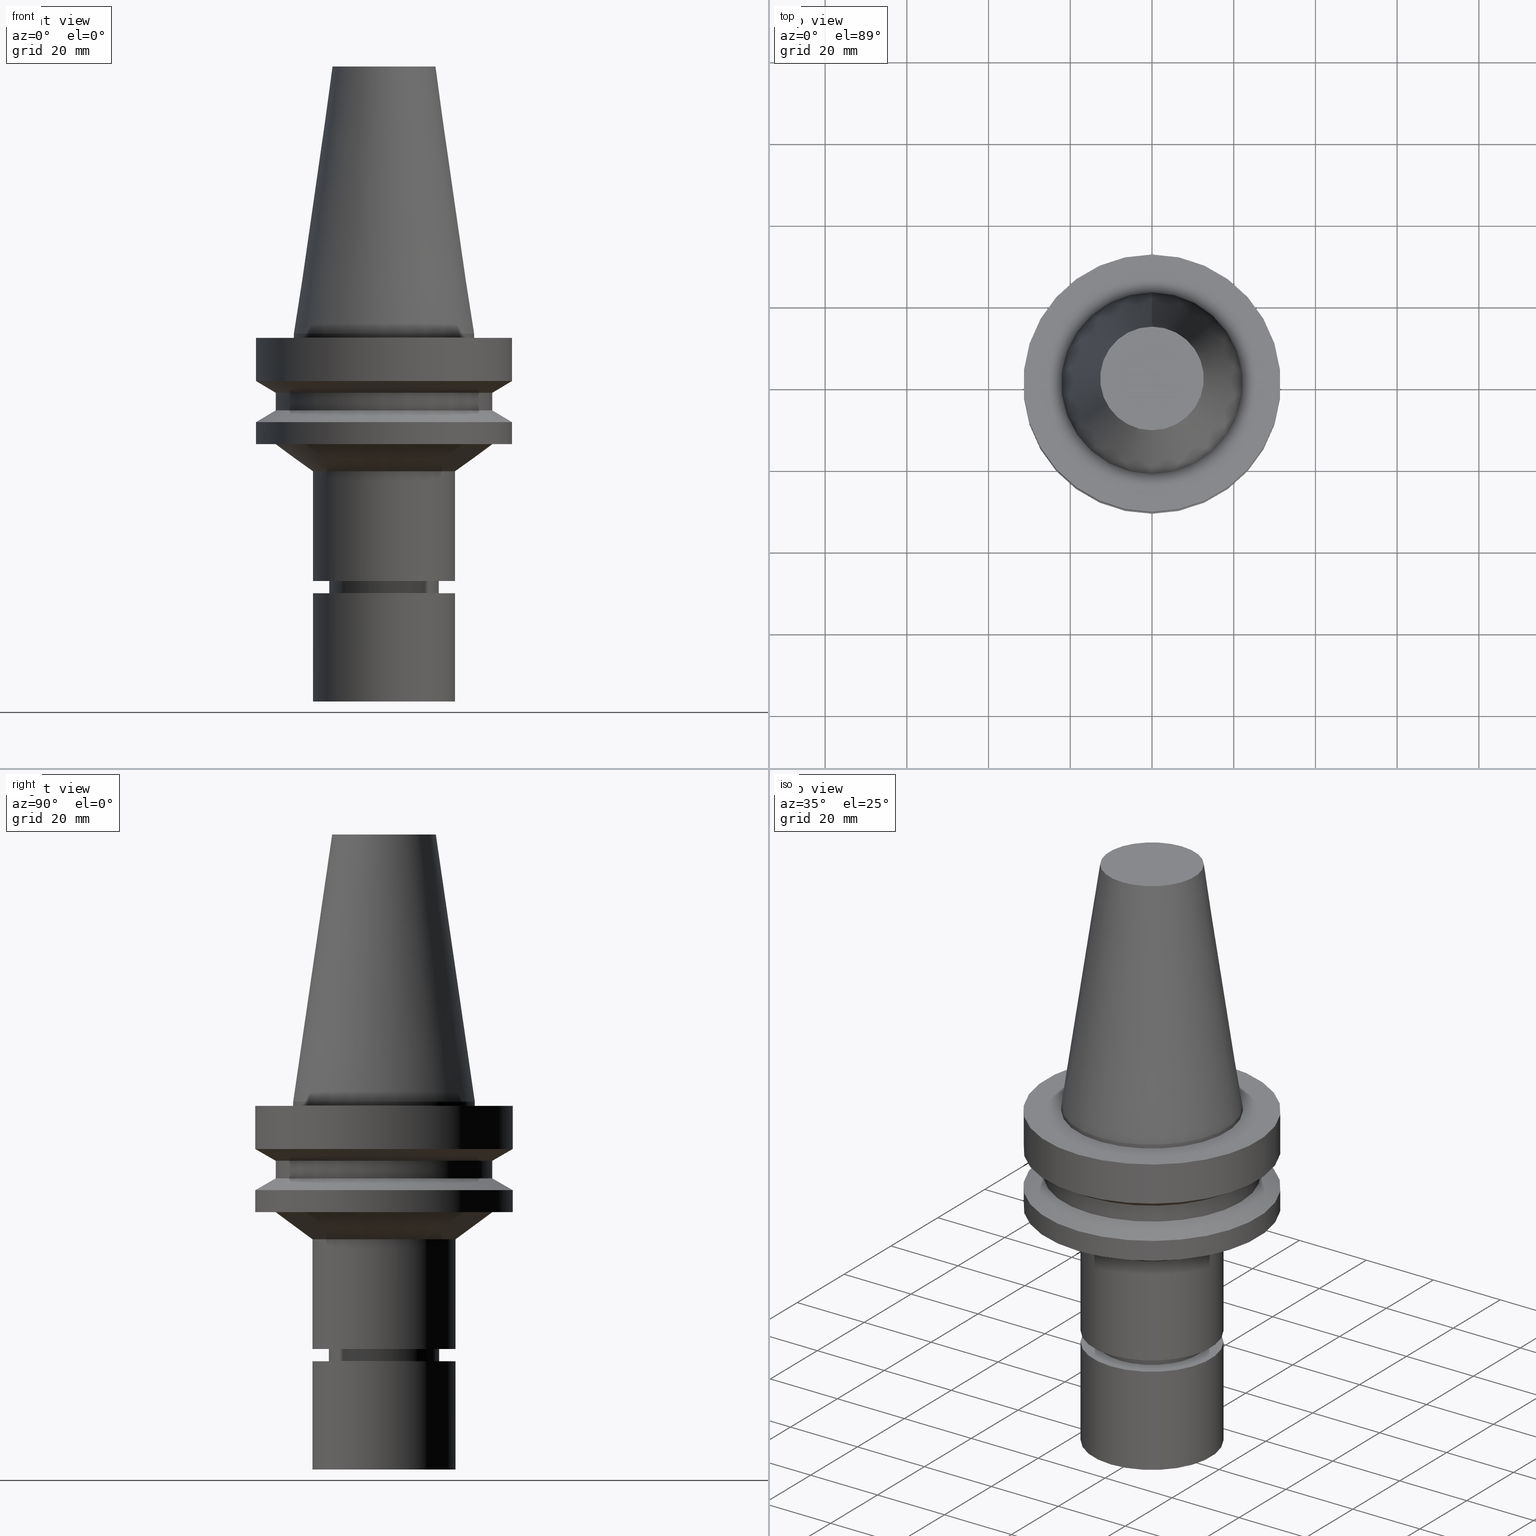
[diagram: canonical four-view strip — front | top / right | iso, engineering-drawing reading convention]
A machine part, canonical four-view strip (front | top / right | iso — engineering-drawing reading convention). The complete STEP part file that produces these views, byte-faithful:
ISO-10303-21;
HEADER;
FILE_DESCRIPTION((''),'1');
FILE_NAME('V:/90_\X2\53D65F9730C730FC30BF\X0\/00_\X2\6DE18DEF30C730FC30BF\X0\/ALL/BBT-BKUS\X2\FF76FF80FF9BFF78FF9E752852A05DE556F3\X0\201801/BBT40-MEGAER/BBT40-MEGAER20-90NL.stp','2018-02-07T01:57:15',(''),(''),'Spatial Interop R21 SP3','Kubotek KeyCreator 2011 V10.0.2 (22737)',' ');
FILE_SCHEMA(('automotive_design'));
ENDSEC;
DATA;
#1=MECHANICAL_DESIGN_GEOMETRIC_PRESENTATION_REPRESENTATION(' ',(#14,#15,#16,#17,#18,#19,#20,#21,#22,#23,#24,#25,#26,#27,#28,#29,#30,#31,#32,#33,#34,#35,#36,#37,#38,#39,#40,#41,#42,#43,#44,#45,#46,#47,#48,#49,#50,#51,#52,#53,#54,#55),#10);
#2=PRODUCT_DEFINITION_CONTEXT('',#56,'design');
#3=APPLICATION_PROTOCOL_DEFINITION('INTERNATIONAL STANDARD','automotive_design',1994,#56);
#4=PRODUCT_CATEGORY_RELATIONSHIP('NONE','NONE',#57,#58);
#5=SHAPE_DEFINITION_REPRESENTATION(#59,#60);
#6=PRODUCT_DEFINITION_CONTEXT('',#61,'design');
#7=APPLICATION_PROTOCOL_DEFINITION('INTERNATIONAL STANDARD','automotive_design',1994,#61);
#8=PRODUCT_CATEGORY_RELATIONSHIP('NONE','NONE',#62,#63);
#9=SHAPE_DEFINITION_REPRESENTATION(#64,#65);
#10= (GEOMETRIC_REPRESENTATION_CONTEXT(3)GLOBAL_UNCERTAINTY_ASSIGNED_CONTEXT((#68))GLOBAL_UNIT_ASSIGNED_CONTEXT((#70,#71,#72))REPRESENTATION_CONTEXT('NONE','WORKSPACE'));
#14=STYLED_ITEM('',(#74,#75),#76);
#15=STYLED_ITEM('',(#77),#78);
#16=STYLED_ITEM('',(#79),#80);
#17=STYLED_ITEM('',(#81,#82),#83);
#18=STYLED_ITEM('',(#84),#85);
#19=STYLED_ITEM('',(#86,#87),#88);
#20=STYLED_ITEM('',(#89,#90),#91);
#21=STYLED_ITEM('',(#92,#93),#94);
#22=STYLED_ITEM('',(#95,#96),#97);
#23=STYLED_ITEM('',(#98,#99),#100);
#24=STYLED_ITEM('',(#101),#102);
#25=STYLED_ITEM('',(#103),#104);
#26=STYLED_ITEM('',(#105),#106);
#27=STYLED_ITEM('',(#107),#108);
#28=STYLED_ITEM('',(#109),#110);
#29=STYLED_ITEM('',(#111),#112);
#30=STYLED_ITEM('',(#113,#114),#115);
#31=STYLED_ITEM('',(#116,#117),#118);
#32=STYLED_ITEM('',(#119),#120);
#33=STYLED_ITEM('',(#121,#122),#123);
#34=STYLED_ITEM('',(#124),#125);
#35=STYLED_ITEM('',(#126,#127),#128);
#36=STYLED_ITEM('',(#129),#130);
#37=STYLED_ITEM('',(#131,#132),#133);
#38=STYLED_ITEM('',(#134,#135),#136);
#39=STYLED_ITEM('',(#137,#138),#139);
#40=STYLED_ITEM('',(#140,#141),#142);
#41=STYLED_ITEM('',(#143,#144),#145);
#42=STYLED_ITEM('',(#146,#147),#148);
#43=STYLED_ITEM('',(#149,#150),#151);
#44=STYLED_ITEM('',(#152,#153),#154);
#45=STYLED_ITEM('',(#155),#156);
#46=STYLED_ITEM('',(#157,#158),#159);
#47=STYLED_ITEM('',(#160),#161);
#48=STYLED_ITEM('',(#162),#163);
#49=STYLED_ITEM('',(#164,#165),#166);
#50=STYLED_ITEM('',(#167),#168);
#51=STYLED_ITEM('',(#169),#170);
#52=STYLED_ITEM('',(#171),#172);
#53=STYLED_ITEM('',(#173),#174);
#54=STYLED_ITEM('',(#175,#176),#177);
#55=STYLED_ITEM('',(#178,#179),#180);
#56=APPLICATION_CONTEXT(' ');
#57=PRODUCT_CATEGORY('part','NONE');
#58=PRODUCT_RELATED_PRODUCT_CATEGORY('detail',' ',(#181));
#59=PRODUCT_DEFINITION_SHAPE('NONE','NONE',#182);
#60=ADVANCED_BREP_SHAPE_REPRESENTATION('Unnamed[1]',(#139,#183),#10);
#61=APPLICATION_CONTEXT(' ');
#62=PRODUCT_CATEGORY('part','NONE');
#63=PRODUCT_RELATED_PRODUCT_CATEGORY('detail',' ',(#184));
#64=PRODUCT_DEFINITION_SHAPE('NONE','NONE',#185);
#65=ADVANCED_BREP_SHAPE_REPRESENTATION('Unnamed[1]',(#76,#186),#10);
#68=UNCERTAINTY_MEASURE_WITH_UNIT(LENGTH_MEASURE(1.0E-006),#70,'','');
#70= (CONVERSION_BASED_UNIT('MILLIMETRE',#189)LENGTH_UNIT()NAMED_UNIT(#192));
#71= (NAMED_UNIT(#194)PLANE_ANGLE_UNIT()SI_UNIT($,.RADIAN.));
#72= (NAMED_UNIT(#194)SOLID_ANGLE_UNIT()SI_UNIT($,.STERADIAN.));
#74=PRESENTATION_STYLE_ASSIGNMENT((#200));
#75=PRESENTATION_STYLE_ASSIGNMENT((#201));
#76=MANIFOLD_SOLID_BREP('Unnamed[1]',#202);
#77=PRESENTATION_STYLE_ASSIGNMENT((#203));
#78=EDGE_CURVE('Unnamed[1]',#204,#204,#205,.T.);
#79=PRESENTATION_STYLE_ASSIGNMENT((#206));
#80=EDGE_CURVE('Unnamed[1]',#207,#207,#208,.T.);
#81=PRESENTATION_STYLE_ASSIGNMENT((#209));
#82=PRESENTATION_STYLE_ASSIGNMENT((#210));
#83=ADVANCED_FACE('Unnamed[1]',(#211,#212),#213,.T.);
#84=PRESENTATION_STYLE_ASSIGNMENT((#214));
#85=EDGE_CURVE('Unnamed[1]',#215,#215,#216,.T.);
#86=PRESENTATION_STYLE_ASSIGNMENT((#217));
#87=PRESENTATION_STYLE_ASSIGNMENT((#218));
#88=ADVANCED_FACE('Unnamed[1]',(#219,#220),#221,.T.);
#89=PRESENTATION_STYLE_ASSIGNMENT((#222));
#90=PRESENTATION_STYLE_ASSIGNMENT((#223));
#91=ADVANCED_FACE('Unnamed[1]',(#224),#225,.T.);
#92=PRESENTATION_STYLE_ASSIGNMENT((#226));
#93=PRESENTATION_STYLE_ASSIGNMENT((#227));
#94=ADVANCED_FACE('Unnamed[1]',(#228,#229),#230,.T.);
#95=PRESENTATION_STYLE_ASSIGNMENT((#231));
#96=PRESENTATION_STYLE_ASSIGNMENT((#232));
#97=ADVANCED_FACE('Unnamed[1]',(#233),#234,.T.);
#98=PRESENTATION_STYLE_ASSIGNMENT((#235));
#99=PRESENTATION_STYLE_ASSIGNMENT((#236));
#100=ADVANCED_FACE('Unnamed[1]',(#237),#238,.T.);
#101=PRESENTATION_STYLE_ASSIGNMENT((#239));
#102=EDGE_CURVE('Unnamed[1]',#240,#240,#241,.T.);
#103=PRESENTATION_STYLE_ASSIGNMENT((#242));
#104=EDGE_CURVE('Unnamed[1]',#243,#243,#244,.T.);
#105=PRESENTATION_STYLE_ASSIGNMENT((#245));
#106=EDGE_CURVE('Unnamed[1]',#246,#246,#247,.T.);
#107=PRESENTATION_STYLE_ASSIGNMENT((#248));
#108=EDGE_CURVE('Unnamed[1]',#249,#249,#250,.T.);
#109=PRESENTATION_STYLE_ASSIGNMENT((#251));
#110=EDGE_CURVE('Unnamed[1]',#252,#252,#253,.T.);
#111=PRESENTATION_STYLE_ASSIGNMENT((#254));
#112=EDGE_CURVE('Unnamed[1]',#255,#255,#256,.T.);
#113=PRESENTATION_STYLE_ASSIGNMENT((#257));
#114=PRESENTATION_STYLE_ASSIGNMENT((#258));
#115=ADVANCED_FACE('Unnamed[1]',(#259,#260),#261,.T.);
#116=PRESENTATION_STYLE_ASSIGNMENT((#262));
#117=PRESENTATION_STYLE_ASSIGNMENT((#263));
#118=ADVANCED_FACE('Unnamed[1]',(#264,#265),#266,.T.);
#119=PRESENTATION_STYLE_ASSIGNMENT((#267));
#120=EDGE_CURVE('Unnamed[1]',#268,#268,#269,.T.);
#121=PRESENTATION_STYLE_ASSIGNMENT((#270));
#122=PRESENTATION_STYLE_ASSIGNMENT((#271));
#123=ADVANCED_FACE('Unnamed[1]',(#272,#273),#274,.T.);
#124=PRESENTATION_STYLE_ASSIGNMENT((#275));
#125=EDGE_CURVE('Unnamed[1]',#276,#276,#277,.T.);
#126=PRESENTATION_STYLE_ASSIGNMENT((#278));
#127=PRESENTATION_STYLE_ASSIGNMENT((#279));
#128=ADVANCED_FACE('Unnamed[1]',(#280,#281),#282,.T.);
#129=PRESENTATION_STYLE_ASSIGNMENT((#283));
#130=EDGE_CURVE('Unnamed[1]',#284,#284,#285,.T.);
#131=PRESENTATION_STYLE_ASSIGNMENT((#286));
#132=PRESENTATION_STYLE_ASSIGNMENT((#287));
#133=ADVANCED_FACE('Unnamed[1]',(#288,#289),#290,.T.);
#134=PRESENTATION_STYLE_ASSIGNMENT((#291));
#135=PRESENTATION_STYLE_ASSIGNMENT((#292));
#136=ADVANCED_FACE('Unnamed[1]',(#293,#294),#295,.T.);
#137=PRESENTATION_STYLE_ASSIGNMENT((#296));
#138=PRESENTATION_STYLE_ASSIGNMENT((#297));
#139=MANIFOLD_SOLID_BREP('Unnamed[1]',#298);
#140=PRESENTATION_STYLE_ASSIGNMENT((#299));
#141=PRESENTATION_STYLE_ASSIGNMENT((#300));
#142=ADVANCED_FACE('Unnamed[1]',(#301,#302),#303,.T.);
#143=PRESENTATION_STYLE_ASSIGNMENT((#304));
#144=PRESENTATION_STYLE_ASSIGNMENT((#305));
#145=ADVANCED_FACE('Unnamed[1]',(#306,#307),#308,.T.);
#146=PRESENTATION_STYLE_ASSIGNMENT((#309));
#147=PRESENTATION_STYLE_ASSIGNMENT((#310));
#148=ADVANCED_FACE('Unnamed[1]',(#311,#312),#313,.T.);
#149=PRESENTATION_STYLE_ASSIGNMENT((#314));
#150=PRESENTATION_STYLE_ASSIGNMENT((#315));
#151=ADVANCED_FACE('Unnamed[1]',(#316,#317),#318,.T.);
#152=PRESENTATION_STYLE_ASSIGNMENT((#319));
#153=PRESENTATION_STYLE_ASSIGNMENT((#320));
#154=ADVANCED_FACE('Unnamed[1]',(#321,#322),#323,.T.);
#155=PRESENTATION_STYLE_ASSIGNMENT((#324));
#156=EDGE_CURVE('Unnamed[1]',#325,#325,#326,.T.);
#157=PRESENTATION_STYLE_ASSIGNMENT((#327));
#158=PRESENTATION_STYLE_ASSIGNMENT((#328));
#159=ADVANCED_FACE('Unnamed[1]',(#329,#330),#331,.T.);
#160=PRESENTATION_STYLE_ASSIGNMENT((#332));
#161=EDGE_CURVE('Unnamed[1]',#333,#333,#334,.T.);
#162=PRESENTATION_STYLE_ASSIGNMENT((#335));
#163=EDGE_CURVE('Unnamed[1]',#336,#336,#337,.T.);
#164=PRESENTATION_STYLE_ASSIGNMENT((#338));
#165=PRESENTATION_STYLE_ASSIGNMENT((#339));
#166=ADVANCED_FACE('Unnamed[1]',(#340,#341),#342,.T.);
#167=PRESENTATION_STYLE_ASSIGNMENT((#343));
#168=EDGE_CURVE('Unnamed[1]',#344,#344,#345,.T.);
#169=PRESENTATION_STYLE_ASSIGNMENT((#346));
#170=EDGE_CURVE('Unnamed[1]',#347,#347,#348,.T.);
#171=PRESENTATION_STYLE_ASSIGNMENT((#349));
#172=EDGE_CURVE('Unnamed[1]',#350,#350,#351,.T.);
#173=PRESENTATION_STYLE_ASSIGNMENT((#352));
#174=EDGE_CURVE('Unnamed[1]',#353,#353,#354,.T.);
#175=PRESENTATION_STYLE_ASSIGNMENT((#355));
#176=PRESENTATION_STYLE_ASSIGNMENT((#356));
#177=ADVANCED_FACE('Unnamed[1]',(#357,#358),#359,.T.);
#178=PRESENTATION_STYLE_ASSIGNMENT((#360));
#179=PRESENTATION_STYLE_ASSIGNMENT((#361));
#180=ADVANCED_FACE('Unnamed[1]',(#362),#363,.T.);
#181=PRODUCT('Unnamed[1]','Unnamed[1]','PART-Unnamed[1]-DESC',(#364));
#182=PRODUCT_DEFINITION('NONE','NONE',#365,#2);
#183=AXIS2_PLACEMENT_3D('',#366,#367,#368);
#184=PRODUCT('Unnamed[1]','Unnamed[1]','PART-Unnamed[1]-DESC',(#369));
#185=PRODUCT_DEFINITION('NONE','NONE',#370,#6);
#186=AXIS2_PLACEMENT_3D('',#371,#372,#373);
#189=LENGTH_MEASURE_WITH_UNIT(LENGTH_MEASURE(1.0),#374);
#192=DIMENSIONAL_EXPONENTS(1.0,0.0,0.0,0.0,0.0,0.0,0.0);
#194=DIMENSIONAL_EXPONENTS(0.0,0.0,0.0,0.0,0.0,0.0,0.0);
#200=SURFACE_STYLE_USAGE(.BOTH.,#375);
#201=CURVE_STYLE('',#376,POSITIVE_LENGTH_MEASURE(1000.0),#377);
#202=CLOSED_SHELL('',(#180,#97,#177));
#203=CURVE_STYLE('',#378,POSITIVE_LENGTH_MEASURE(1000.0),#379);
#204=VERTEX_POINT('',#380);
#205=CIRCLE('',#381,13.5000000000004);
#206=CURVE_STYLE('',#382,POSITIVE_LENGTH_MEASURE(1000.0),#383);
#207=VERTEX_POINT('',#384);
#208=CIRCLE('',#385,26.5);
#209=SURFACE_STYLE_USAGE(.BOTH.,#386);
#210=CURVE_STYLE('',#387,POSITIVE_LENGTH_MEASURE(1000.0),#388);
#211=FACE_BOUND('',#389,.T.);
#212=FACE_BOUND('',#390,.T.);
#213=CYLINDRICAL_SURFACE('',#391,22.225);
#214=CURVE_STYLE('',#392,POSITIVE_LENGTH_MEASURE(1000.0),#393);
#215=VERTEX_POINT('',#394);
#216=CIRCLE('',#395,17.4999999999998);
#217=SURFACE_STYLE_USAGE(.BOTH.,#396);
#218=CURVE_STYLE('',#397,POSITIVE_LENGTH_MEASURE(1000.0),#398);
#219=FACE_BOUND('',#399,.T.);
#220=FACE_BOUND('',#400,.T.);
#221=CYLINDRICAL_SURFACE('',#401,26.4999999999997);
#222=SURFACE_STYLE_USAGE(.BOTH.,#402);
#223=CURVE_STYLE('',#403,POSITIVE_LENGTH_MEASURE(1000.0),#404);
#224=FACE_OUTER_BOUND('',#405,.T.);
#225=PLANE('',#406);
#226=SURFACE_STYLE_USAGE(.BOTH.,#407);
#227=CURVE_STYLE('',#408,POSITIVE_LENGTH_MEASURE(1000.0),#409);
#228=FACE_BOUND('',#410,.T.);
#229=FACE_BOUND('',#411,.T.);
#230=CYLINDRICAL_SURFACE('',#412,13.4999999999956);
#231=SURFACE_STYLE_USAGE(.BOTH.,#413);
#232=CURVE_STYLE('',#414,POSITIVE_LENGTH_MEASURE(1000.0),#415);
#233=FACE_OUTER_BOUND('',#416,.T.);
#234=PLANE('',#417);
#235=SURFACE_STYLE_USAGE(.BOTH.,#418);
#236=CURVE_STYLE('',#419,POSITIVE_LENGTH_MEASURE(1000.0),#420);
#237=FACE_OUTER_BOUND('',#421,.T.);
#238=PLANE('',#422);
#239=CURVE_STYLE('',#423,POSITIVE_LENGTH_MEASURE(1000.0),#424);
#240=VERTEX_POINT('',#425);
#241=CIRCLE('',#426,31.5000000000003);
#242=CURVE_STYLE('',#427,POSITIVE_LENGTH_MEASURE(1000.0),#428);
#243=VERTEX_POINT('',#429);
#244=CIRCLE('',#430,17.5000000000009);
#245=CURVE_STYLE('',#431,POSITIVE_LENGTH_MEASURE(1000.0),#432);
#246=VERTEX_POINT('',#433);
#247=CIRCLE('',#434,22.225);
#248=CURVE_STYLE('',#435,POSITIVE_LENGTH_MEASURE(1000.0),#436);
#249=VERTEX_POINT('',#437);
#250=CIRCLE('',#438,26.5445817036666);
#251=CURVE_STYLE('',#439,POSITIVE_LENGTH_MEASURE(1000.0),#440);
#252=VERTEX_POINT('',#441);
#253=CIRCLE('',#442,11.3999999999978);
#254=CURVE_STYLE('',#443,POSITIVE_LENGTH_MEASURE(1000.0),#444);
#255=VERTEX_POINT('',#445);
#256=CIRCLE('',#446,26.4999999999994);
#257=SURFACE_STYLE_USAGE(.BOTH.,#447);
#258=CURVE_STYLE('',#448,POSITIVE_LENGTH_MEASURE(1000.0),#449);
#259=FACE_BOUND('',#450,.T.);
#260=FACE_BOUND('',#451,.T.);
#261=CONICAL_SURFACE('',#452,28.9999999999999,1.04719755119657);
#262=SURFACE_STYLE_USAGE(.BOTH.,#453);
#263=CURVE_STYLE('',#454,POSITIVE_LENGTH_MEASURE(1000.0),#455);
#264=FACE_BOUND('',#456,.T.);
#265=FACE_BOUND('',#457,.T.);
#266=CYLINDRICAL_SURFACE('',#458,31.5000000000005);
#267=CURVE_STYLE('',#459,POSITIVE_LENGTH_MEASURE(1000.0),#460);
#268=VERTEX_POINT('',#461);
#269=CIRCLE('',#462,12.6875000000001);
#270=SURFACE_STYLE_USAGE(.BOTH.,#463);
#271=CURVE_STYLE('',#464,POSITIVE_LENGTH_MEASURE(1000.0),#465);
#272=FACE_BOUND('',#466,.T.);
#273=FACE_BOUND('',#467,.T.);
#274=CONICAL_SURFACE('',#468,13.0000000000001,1.04719755119484);
#275=CURVE_STYLE('',#469,POSITIVE_LENGTH_MEASURE(1000.0),#470);
#276=VERTEX_POINT('',#471);
#277=CIRCLE('',#472,17.5);
#278=SURFACE_STYLE_USAGE(.BOTH.,#473);
#279=CURVE_STYLE('',#474,POSITIVE_LENGTH_MEASURE(1000.0),#475);
#280=FACE_BOUND('',#476,.T.);
#281=FACE_BOUND('',#477,.T.);
#282=CYLINDRICAL_SURFACE('',#478,17.5000000000003);
#283=CURVE_STYLE('',#479,POSITIVE_LENGTH_MEASURE(1000.0),#480);
#284=VERTEX_POINT('',#481);
#285=CIRCLE('',#482,31.5000000000007);
#286=SURFACE_STYLE_USAGE(.BOTH.,#483);
#287=CURVE_STYLE('',#484,POSITIVE_LENGTH_MEASURE(1000.0),#485);
#288=FACE_BOUND('',#486,.T.);
#289=FACE_OUTER_BOUND('',#487,.T.);
#290=PLANE('',#488);
#291=SURFACE_STYLE_USAGE(.BOTH.,#489);
#292=CURVE_STYLE('',#490,POSITIVE_LENGTH_MEASURE(1000.0),#491);
#293=FACE_BOUND('',#492,.T.);
#294=FACE_BOUND('',#493,.T.);
#295=CONICAL_SURFACE('',#494,22.0222908518337,0.935754396976024);
#296=SURFACE_STYLE_USAGE(.BOTH.,#495);
#297=CURVE_STYLE('',#496,POSITIVE_LENGTH_MEASURE(1000.0),#497);
#298=CLOSED_SHELL('',(#100,#145,#83,#148,#166,#115,#88,#151,#118,#142,#136,#128,#133,#94,#123,#159,#154,#91));
#299=SURFACE_STYLE_USAGE(.BOTH.,#498);
#300=CURVE_STYLE('',#499,POSITIVE_LENGTH_MEASURE(1000.0),#500);
#301=FACE_BOUND('',#501,.T.);
#302=FACE_OUTER_BOUND('',#502,.T.);
#303=PLANE('',#503);
#304=SURFACE_STYLE_USAGE(.BOTH.,#504);
#305=CURVE_STYLE('',#505,POSITIVE_LENGTH_MEASURE(1000.0),#506);
#306=FACE_BOUND('',#507,.T.);
#307=FACE_BOUND('',#508,.T.);
#308=CONICAL_SURFACE('',#509,17.4562500000001,0.144812498238936);
#309=SURFACE_STYLE_USAGE(.BOTH.,#510);
#310=CURVE_STYLE('',#511,POSITIVE_LENGTH_MEASURE(1000.0),#512);
#311=FACE_OUTER_BOUND('',#513,.T.);
#312=FACE_BOUND('',#514,.T.);
#313=PLANE('',#515);
#314=SURFACE_STYLE_USAGE(.BOTH.,#516);
#315=CURVE_STYLE('',#517,POSITIVE_LENGTH_MEASURE(1000.0),#518);
#316=FACE_BOUND('',#519,.T.);
#317=FACE_BOUND('',#520,.T.);
#318=CONICAL_SURFACE('',#521,29.0000000000003,1.04719755119651);
#319=SURFACE_STYLE_USAGE(.BOTH.,#522);
#320=CURVE_STYLE('',#523,POSITIVE_LENGTH_MEASURE(1000.0),#524);
#321=FACE_BOUND('',#525,.T.);
#322=FACE_BOUND('',#526,.T.);
#323=CONICAL_SURFACE('',#527,11.9499999999988,0.523598775598655);
#324=CURVE_STYLE('',#528,POSITIVE_LENGTH_MEASURE(1000.0),#529);
#325=VERTEX_POINT('',#530);
#326=CIRCLE('',#531,31.5000000000003);
#327=SURFACE_STYLE_USAGE(.BOTH.,#532);
#328=CURVE_STYLE('',#533,POSITIVE_LENGTH_MEASURE(1000.0),#534);
#329=FACE_BOUND('',#535,.T.);
#330=FACE_BOUND('',#536,.T.);
#331=CYLINDRICAL_SURFACE('',#537,12.4999999999998);
#332=CURVE_STYLE('',#538,POSITIVE_LENGTH_MEASURE(1000.0),#539);
#333=VERTEX_POINT('',#540);
#334=CIRCLE('',#541,13.4999999999908);
#335=CURVE_STYLE('',#542,POSITIVE_LENGTH_MEASURE(1000.0),#543);
#336=VERTEX_POINT('',#544);
#337=CIRCLE('',#545,12.4999999999999);
#338=SURFACE_STYLE_USAGE(.BOTH.,#546);
#339=CURVE_STYLE('',#547,POSITIVE_LENGTH_MEASURE(1000.0),#548);
#340=FACE_BOUND('',#549,.T.);
#341=FACE_BOUND('',#550,.T.);
#342=CYLINDRICAL_SURFACE('',#551,31.5);
#343=CURVE_STYLE('',#552,POSITIVE_LENGTH_MEASURE(1000.0),#553);
#344=VERTEX_POINT('',#554);
#345=CIRCLE('',#555,12.4999999999997);
#346=CURVE_STYLE('',#556,POSITIVE_LENGTH_MEASURE(1000.0),#557);
#347=VERTEX_POINT('',#558);
#348=CIRCLE('',#559,22.225);
#349=CURVE_STYLE('',#560,POSITIVE_LENGTH_MEASURE(1000.0),#561);
#350=VERTEX_POINT('',#562);
#351=CIRCLE('',#563,17.5);
#352=CURVE_STYLE('',#564,POSITIVE_LENGTH_MEASURE(1000.0),#565);
#353=VERTEX_POINT('',#566);
#354=CIRCLE('',#567,31.4999999999996);
#355=SURFACE_STYLE_USAGE(.BOTH.,#568);
#356=CURVE_STYLE('',#569,POSITIVE_LENGTH_MEASURE(1000.0),#570);
#357=FACE_BOUND('',#571,.T.);
#358=FACE_BOUND('',#572,.T.);
#359=CYLINDRICAL_SURFACE('',#573,17.5);
#360=SURFACE_STYLE_USAGE(.BOTH.,#574);
#361=CURVE_STYLE('',#575,POSITIVE_LENGTH_MEASURE(1000.0),#576);
#362=FACE_OUTER_BOUND('',#577,.T.);
#363=PLANE('',#578);
#364=PRODUCT_CONTEXT('',#56,'mechanical');
#365=PRODUCT_DEFINITION_FORMATION_WITH_SPECIFIED_SOURCE(' ','NONE',#181,.NOT_KNOWN.);
#366=CARTESIAN_POINT('',(0.0,0.0,0.0));
#367=DIRECTION('',(0.0,0.0,1.0));
#368=DIRECTION('',(1.0,0.0,0.0));
#369=PRODUCT_CONTEXT('',#61,'mechanical');
#370=PRODUCT_DEFINITION_FORMATION_WITH_SPECIFIED_SOURCE(' ','NONE',#184,.NOT_KNOWN.);
#371=CARTESIAN_POINT('',(0.0,0.0,0.0));
#372=DIRECTION('',(0.0,0.0,1.0));
#373=DIRECTION('',(1.0,0.0,0.0));
#374= (NAMED_UNIT(#192)LENGTH_UNIT()SI_UNIT(.MILLI.,.METRE.));
#375=SURFACE_SIDE_STYLE('',(#580));
#376=DRAUGHTING_PRE_DEFINED_CURVE_FONT('continuous');
#377=COLOUR_RGB('',0.0,1.0,0.0);
#378=DRAUGHTING_PRE_DEFINED_CURVE_FONT('continuous');
#379=COLOUR_RGB('',0.0,1.0,0.0);
#380=CARTESIAN_POINT('',(4.06107114292147E-015,13.5000000000005,-66.3223248654052));
#381=AXIS2_PLACEMENT_3D('',#581,#582,#583);
#382=DRAUGHTING_PRE_DEFINED_CURVE_FONT('continuous');
#383=COLOUR_RGB('',0.0,1.0,0.0);
#384=CARTESIAN_POINT('',(1.1479681728942E-015,26.5,-18.7477430013855));
#385=AXIS2_PLACEMENT_3D('',#584,#585,#586);
#386=SURFACE_SIDE_STYLE('',(#587));
#387=DRAUGHTING_PRE_DEFINED_CURVE_FONT('continuous');
#388=COLOUR_RGB('',0.0,1.0,0.0);
#389=EDGE_LOOP('',(#588));
#390=EDGE_LOOP('',(#589));
#391=AXIS2_PLACEMENT_3D('',#590,#591,#592);
#392=DRAUGHTING_PRE_DEFINED_CURVE_FONT('continuous');
#393=COLOUR_RGB('',0.0,1.0,0.0);
#394=CARTESIAN_POINT('',(3.70455656742073E-015,17.4999999999998,-60.4999999999998));
#395=AXIS2_PLACEMENT_3D('',#593,#594,#595);
#396=SURFACE_SIDE_STYLE('',(#596));
#397=DRAUGHTING_PRE_DEFINED_CURVE_FONT('continuous');
#398=COLOUR_RGB('',0.0,1.0,0.0);
#399=EDGE_LOOP('',(#597));
#400=EDGE_LOOP('',(#598));
#401=AXIS2_PLACEMENT_3D('',#599,#600,#601);
#402=SURFACE_SIDE_STYLE('',(#602));
#403=DRAUGHTING_PRE_DEFINED_CURVE_FONT('continuous');
#404=COLOUR_RGB('',0.0,1.0,0.0);
#405=EDGE_LOOP('',(#603));
#406=AXIS2_PLACEMENT_3D('',#604,#605,#606);
#407=SURFACE_SIDE_STYLE('',(#607));
#408=DRAUGHTING_PRE_DEFINED_CURVE_FONT('continuous');
#409=COLOUR_RGB('',0.0,1.0,0.0);
#410=EDGE_LOOP('',(#608));
#411=EDGE_LOOP('',(#609));
#412=AXIS2_PLACEMENT_3D('',#610,#611,#612);
#413=SURFACE_SIDE_STYLE('',(#613));
#414=DRAUGHTING_PRE_DEFINED_CURVE_FONT('continuous');
#415=COLOUR_RGB('',0.0,1.0,0.0);
#416=EDGE_LOOP('',(#614));
#417=AXIS2_PLACEMENT_3D('',#615,#616,#617);
#418=SURFACE_SIDE_STYLE('',(#618));
#419=DRAUGHTING_PRE_DEFINED_CURVE_FONT('continuous');
#420=COLOUR_RGB('',0.0,1.0,0.0);
#421=EDGE_LOOP('',(#619));
#422=AXIS2_PLACEMENT_3D('',#620,#621,#622);
#423=DRAUGHTING_PRE_DEFINED_CURVE_FONT('continuous');
#424=COLOUR_RGB('',0.0,1.0,0.0);
#425=CARTESIAN_POINT('',(1.65327317884891E-015,31.5000000000004,-26.9999999999998));
#426=AXIS2_PLACEMENT_3D('',#623,#624,#625);
#427=DRAUGHTING_PRE_DEFINED_CURVE_FONT('continuous');
#428=COLOUR_RGB('',0.0,1.0,0.0);
#429=CARTESIAN_POINT('',(2.06136472190229E-015,17.500000000001,-33.6646406676193));
#430=AXIS2_PLACEMENT_3D('',#626,#627,#628);
#431=DRAUGHTING_PRE_DEFINED_CURVE_FONT('continuous');
#432=COLOUR_RGB('',0.0,1.0,0.0);
#433=CARTESIAN_POINT('',(1.71319921032766E-029,22.2250000000001,-2.8153873565375E-013));
#434=AXIS2_PLACEMENT_3D('',#629,#630,#631);
#435=DRAUGHTING_PRE_DEFINED_CURVE_FONT('continuous');
#436=COLOUR_RGB('',0.0,1.0,0.0);
#437=CARTESIAN_POINT('',(1.65327317884891E-015,26.5445817036666,-26.9999999999998));
#438=AXIS2_PLACEMENT_3D('',#632,#633,#634);
#439=DRAUGHTING_PRE_DEFINED_CURVE_FONT('continuous');
#440=COLOUR_RGB('',0.0,1.0,0.0);
#441=CARTESIAN_POINT('',(4.91083366458089E-015,11.3999999999978,-80.2000000000001));
#442=AXIS2_PLACEMENT_3D('',#635,#636,#637);
#443=DRAUGHTING_PRE_DEFINED_CURVE_FONT('continuous');
#444=COLOUR_RGB('',0.0,1.0,0.0);
#445=CARTESIAN_POINT('',(8.8494551369045E-016,26.4999999999995,-14.4522569986152));
#446=AXIS2_PLACEMENT_3D('',#638,#639,#640);
#447=SURFACE_SIDE_STYLE('',(#641));
#448=DRAUGHTING_PRE_DEFINED_CURVE_FONT('continuous');
#449=COLOUR_RGB('',0.0,1.0,0.0);
#450=EDGE_LOOP('',(#642));
#451=EDGE_LOOP('',(#643));
#452=AXIS2_PLACEMENT_3D('',#644,#645,#646);
#453=SURFACE_SIDE_STYLE('',(#647));
#454=DRAUGHTING_PRE_DEFINED_CURVE_FONT('continuous');
#455=COLOUR_RGB('',0.0,1.0,0.0);
#456=EDGE_LOOP('',(#648));
#457=EDGE_LOOP('',(#649));
#458=AXIS2_PLACEMENT_3D('',#650,#651,#652);
#459=DRAUGHTING_PRE_DEFINED_CURVE_FONT('continuous');
#460=COLOUR_RGB('',0.0,1.0,0.0);
#461=CARTESIAN_POINT('',(-4.00459503321185E-015,12.6875000000002,65.4000000000001));
#462=AXIS2_PLACEMENT_3D('',#653,#654,#655);
#463=SURFACE_SIDE_STYLE('',(#656));
#464=DRAUGHTING_PRE_DEFINED_CURVE_FONT('continuous');
#465=COLOUR_RGB('',0.0,1.0,0.0);
#466=EDGE_LOOP('',(#657));
#467=EDGE_LOOP('',(#658));
#468=AXIS2_PLACEMENT_3D('',#659,#660,#661);
#469=DRAUGHTING_PRE_DEFINED_CURVE_FONT('continuous');
#470=COLOUR_RGB('',0.0,1.0,0.0);
#471=CARTESIAN_POINT('',(3.8882545216242E-015,17.5,-63.500015258789));
#472=AXIS2_PLACEMENT_3D('',#662,#663,#664);
#473=SURFACE_SIDE_STYLE('',(#665));
#474=DRAUGHTING_PRE_DEFINED_CURVE_FONT('continuous');
#475=COLOUR_RGB('',0.0,1.0,0.0);
#476=EDGE_LOOP('',(#666));
#477=EDGE_LOOP('',(#667));
#478=AXIS2_PLACEMENT_3D('',#668,#669,#670);
#479=DRAUGHTING_PRE_DEFINED_CURVE_FONT('continuous');
#480=COLOUR_RGB('',0.0,1.0,0.0);
#481=CARTESIAN_POINT('',(1.32473071268174E-015,31.5000000000007,-21.6344943473346));
#482=AXIS2_PLACEMENT_3D('',#671,#672,#673);
#483=SURFACE_SIDE_STYLE('',(#674));
#484=DRAUGHTING_PRE_DEFINED_CURVE_FONT('continuous');
#485=COLOUR_RGB('',0.0,1.0,0.0);
#486=EDGE_LOOP('',(#675));
#487=EDGE_LOOP('',(#676));
#488=AXIS2_PLACEMENT_3D('',#677,#678,#679);
#489=SURFACE_SIDE_STYLE('',(#680));
#490=DRAUGHTING_PRE_DEFINED_CURVE_FONT('continuous');
#491=COLOUR_RGB('',0.0,1.0,0.0);
#492=EDGE_LOOP('',(#681));
#493=EDGE_LOOP('',(#682));
#494=AXIS2_PLACEMENT_3D('',#683,#684,#685);
#495=SURFACE_SIDE_STYLE('',(#686));
#496=DRAUGHTING_PRE_DEFINED_CURVE_FONT('continuous');
#497=COLOUR_RGB('',0.0,1.0,0.0);
#498=SURFACE_SIDE_STYLE('',(#687));
#499=DRAUGHTING_PRE_DEFINED_CURVE_FONT('continuous');
#500=COLOUR_RGB('',0.0,1.0,0.0);
#501=EDGE_LOOP('',(#688));
#502=EDGE_LOOP('',(#689));
#503=AXIS2_PLACEMENT_3D('',#690,#691,#692);
#504=SURFACE_SIDE_STYLE('',(#693));
#505=DRAUGHTING_PRE_DEFINED_CURVE_FONT('continuous');
#506=COLOUR_RGB('',0.0,1.0,0.0);
#507=EDGE_LOOP('',(#694));
#508=EDGE_LOOP('',(#695));
#509=AXIS2_PLACEMENT_3D('',#696,#697,#698);
#510=SURFACE_SIDE_STYLE('',(#699));
#511=DRAUGHTING_PRE_DEFINED_CURVE_FONT('continuous');
#512=COLOUR_RGB('',0.0,1.0,0.0);
#513=EDGE_LOOP('',(#700));
#514=EDGE_LOOP('',(#701));
#515=AXIS2_PLACEMENT_3D('',#702,#703,#704);
#516=SURFACE_SIDE_STYLE('',(#705));
#517=DRAUGHTING_PRE_DEFINED_CURVE_FONT('continuous');
#518=COLOUR_RGB('',0.0,1.0,0.0);
#519=EDGE_LOOP('',(#706));
#520=EDGE_LOOP('',(#707));
#521=AXIS2_PLACEMENT_3D('',#708,#709,#710);
#522=SURFACE_SIDE_STYLE('',(#711));
#523=DRAUGHTING_PRE_DEFINED_CURVE_FONT('continuous');
#524=COLOUR_RGB('',0.0,1.0,0.0);
#525=EDGE_LOOP('',(#712));
#526=EDGE_LOOP('',(#713));
#527=AXIS2_PLACEMENT_3D('',#714,#715,#716);
#528=DRAUGHTING_PRE_DEFINED_CURVE_FONT('continuous');
#529=COLOUR_RGB('',0.0,1.0,0.0);
#530=CARTESIAN_POINT('',(7.08182973902924E-016,31.5000000000004,-11.5655056526664));
#531=AXIS2_PLACEMENT_3D('',#717,#718,#719);
#532=SURFACE_SIDE_STYLE('',(#720));
#533=DRAUGHTING_PRE_DEFINED_CURVE_FONT('continuous');
#534=COLOUR_RGB('',0.0,1.0,0.0);
#535=EDGE_LOOP('',(#721));
#536=EDGE_LOOP('',(#722));
#537=AXIS2_PLACEMENT_3D('',#723,#724,#725);
#538=DRAUGHTING_PRE_DEFINED_CURVE_FONT('continuous');
#539=COLOUR_RGB('',0.0,1.0,0.0);
#540=CARTESIAN_POINT('',(3.70455656742072E-015,13.4999999999908,-60.4999999999996));
#541=AXIS2_PLACEMENT_3D('',#726,#727,#728);
#542=DRAUGHTING_PRE_DEFINED_CURVE_FONT('continuous');
#543=COLOUR_RGB('',0.0,1.0,0.0);
#544=CARTESIAN_POINT('',(4.09642365087913E-015,12.4999999999999,-66.8996751345975));
#545=AXIS2_PLACEMENT_3D('',#729,#730,#731);
#546=SURFACE_SIDE_STYLE('',(#732));
#547=DRAUGHTING_PRE_DEFINED_CURVE_FONT('continuous');
#548=COLOUR_RGB('',0.0,1.0,0.0);
#549=EDGE_LOOP('',(#733));
#550=EDGE_LOOP('',(#734));
#551=AXIS2_PLACEMENT_3D('',#735,#736,#737);
#552=DRAUGHTING_PRE_DEFINED_CURVE_FONT('continuous');
#553=COLOUR_RGB('',0.0,1.0,0.0);
#554=CARTESIAN_POINT('',(4.79417038832104E-015,12.4999999999998,-78.2947441116725));
#555=AXIS2_PLACEMENT_3D('',#738,#739,#740);
#556=DRAUGHTING_PRE_DEFINED_CURVE_FONT('continuous');
#557=COLOUR_RGB('',0.0,1.0,0.0);
#558=CARTESIAN_POINT('',(6.12323399573622E-017,22.2250000000001,-0.999999999999912));
#559=AXIS2_PLACEMENT_3D('',#741,#742,#743);
#560=DRAUGHTING_PRE_DEFINED_CURVE_FONT('continuous');
#561=COLOUR_RGB('',0.0,1.0,0.0);
#562=CARTESIAN_POINT('',(5.51091059616308E-015,17.5,-89.9999999999999));
#563=AXIS2_PLACEMENT_3D('',#744,#745,#746);
#564=DRAUGHTING_PRE_DEFINED_CURVE_FONT('continuous');
#565=COLOUR_RGB('',0.0,1.0,0.0);
#566=CARTESIAN_POINT('',(6.12323399573568E-017,31.4999999999997,-0.999999999999825));
#567=AXIS2_PLACEMENT_3D('',#747,#748,#749);
#568=SURFACE_SIDE_STYLE('',(#750));
#569=DRAUGHTING_PRE_DEFINED_CURVE_FONT('continuous');
#570=COLOUR_RGB('',0.0,1.0,0.0);
#571=EDGE_LOOP('',(#751));
#572=EDGE_LOOP('',(#752));
#573=AXIS2_PLACEMENT_3D('',#753,#754,#755);
#574=SURFACE_SIDE_STYLE('',(#756));
#575=DRAUGHTING_PRE_DEFINED_CURVE_FONT('continuous');
#576=COLOUR_RGB('',0.0,1.0,0.0);
#577=EDGE_LOOP('',(#757));
#578=AXIS2_PLACEMENT_3D('',#758,#759,#760);
#580=SURFACE_STYLE_FILL_AREA(#761);
#581=CARTESIAN_POINT('',(4.06107114292147E-015,5.64417810814143E-014,-66.3223248654052));
#582=DIRECTION('',(6.12323399573677E-017,-1.56164866711512E-016,-1.0));
#583=DIRECTION('',(4.73518747711287E-033,1.0,-1.56164866711512E-016));
#584=CARTESIAN_POINT('',(1.1479681728942E-015,6.38712593170646E-014,-18.7477430013855));
#585=DIRECTION('',(6.12323399573677E-017,-1.56164866711515E-016,-1.0));
#586=DIRECTION('',(4.73518747710149E-033,1.0,-1.56164866711515E-016));
#587=SURFACE_STYLE_FILL_AREA(#762);
#588=ORIENTED_EDGE('',*,*,#170,.F.);
#589=ORIENTED_EDGE('',*,*,#106,.T.);
#590=CARTESIAN_POINT('',(3.06161699786899E-017,6.67209156706617E-014,-0.500000000000099));
#591=DIRECTION('',(6.12323399573677E-017,-1.56164866711448E-016,-1.0));
#592=DIRECTION('',(4.73518747710115E-033,1.0,-1.56164866711448E-016));
#593=CARTESIAN_POINT('',(3.70455656742073E-015,5.73510236679714E-014,-60.4999999999998));
#594=DIRECTION('',(6.12323399573677E-017,-1.56164866711454E-016,-1.0));
#595=DIRECTION('',(4.73518747710928E-033,1.0,-1.56164866711454E-016));
#596=SURFACE_STYLE_FILL_AREA(#763);
#597=ORIENTED_EDGE('',*,*,#80,.F.);
#598=ORIENTED_EDGE('',*,*,#112,.T.);
#599=CARTESIAN_POINT('',(1.01645684329232E-015,6.42066613166065E-014,-16.6000000000003));
#600=DIRECTION('',(6.12323399573676E-017,-1.56164866711517E-016,-1.0));
#601=DIRECTION('',(4.73518747711508E-033,1.0,-1.56164866711517E-016));
#602=SURFACE_STYLE_FILL_AREA(#764);
#603=ORIENTED_EDGE('',*,*,#110,.T.);
#604=CARTESIAN_POINT('',(4.91083366458089E-015,5.69999999999893,-80.2000000000001));
#605=DIRECTION('',(6.12323399573677E-017,-7.35693253861411E-015,-1.0));
#606=DIRECTION('',(4.4565504151707E-031,1.0,-7.35693253861411E-015));
#607=SURFACE_STYLE_FILL_AREA(#765);
#608=ORIENTED_EDGE('',*,*,#78,.F.);
#609=ORIENTED_EDGE('',*,*,#161,.T.);
#610=CARTESIAN_POINT('',(3.88281385517109E-015,5.68964023746929E-014,-63.4111624327024));
#611=DIRECTION('',(6.12323399573677E-017,-1.56164866711449E-016,-1.0));
#612=DIRECTION('',(4.73518747710128E-033,1.0,-1.56164866711449E-016));
#613=SURFACE_STYLE_FILL_AREA(#766);
#614=ORIENTED_EDGE('',*,*,#125,.F.);
#615=CARTESIAN_POINT('',(3.8882545216242E-015,8.75000000000003,-63.500015258789));
#616=DIRECTION('',(-6.12323399573677E-017,-1.22464679914735E-016,1.0));
#617=DIRECTION('',(1.23259516440783E-032,-1.0,-1.22464679914735E-016));
#618=SURFACE_STYLE_FILL_AREA(#767);
#619=ORIENTED_EDGE('',*,*,#120,.F.);
#620=CARTESIAN_POINT('',(-4.00459503321185E-015,6.34375000000014,65.4000000000001));
#621=DIRECTION('',(-6.12323399573677E-017,9.97602686800683E-016,1.0));
#622=DIRECTION('',(-5.62583941297938E-032,-1.0,9.97602686800683E-016));
#623=CARTESIAN_POINT('',(1.65327317884891E-015,6.25825467028069E-014,-26.9999999999998));
#624=DIRECTION('',(6.12323399573677E-017,-1.5616486671143E-016,-1.0));
#625=DIRECTION('',(4.73518747709778E-033,1.0,-1.5616486671143E-016));
#626=CARTESIAN_POINT('',(2.06136472190229E-015,6.1541763981268E-014,-33.6646406676193));
#627=DIRECTION('',(6.12323399573677E-017,-1.56164866711444E-016,-1.0));
#628=DIRECTION('',(4.73518747710897E-033,1.0,-1.56164866711444E-016));
#629=CARTESIAN_POINT('',(1.74032777401202E-029,6.67989981040175E-014,-2.8421709430404E-013));
#630=DIRECTION('',(6.12323399573677E-017,-1.56164866711448E-016,-1.0));
#631=DIRECTION('',(4.73518747710115E-033,1.0,-1.56164866711448E-016));
#632=CARTESIAN_POINT('',(1.65327317884891E-015,6.25825467028069E-014,-26.9999999999998));
#633=DIRECTION('',(6.12323399573677E-017,-1.56164866711466E-016,-1.0));
#634=DIRECTION('',(4.73518747710329E-033,1.0,-1.56164866711466E-016));
#635=CARTESIAN_POINT('',(4.91083366458089E-015,5.42745757937547E-014,-80.2000000000001));
#636=DIRECTION('',(6.12323399573677E-017,-1.56164866711469E-016,-1.0));
#637=DIRECTION('',(4.73518747710678E-033,1.0,-1.56164866711469E-016));
#638=CARTESIAN_POINT('',(8.84945513690449E-016,6.45420633161483E-014,-14.4522569986152));
#639=DIRECTION('',(6.12323399573677E-017,-1.56164866711519E-016,-1.0));
#640=DIRECTION('',(4.73518747711513E-033,1.0,-1.56164866711519E-016));
#641=SURFACE_STYLE_FILL_AREA(#768);
#642=ORIENTED_EDGE('',*,*,#112,.F.);
#643=ORIENTED_EDGE('',*,*,#156,.T.);
#644=CARTESIAN_POINT('',(7.96564243796687E-016,6.4767467885733E-014,-13.0088813256408));
#645=DIRECTION('',(-6.12323399573677E-017,1.56164866711415E-016,1.0));
#646=DIRECTION('',(4.73518747710571E-033,1.0,-1.56164866711415E-016));
#647=SURFACE_STYLE_FILL_AREA(#769);
#648=ORIENTED_EDGE('',*,*,#102,.F.);
#649=ORIENTED_EDGE('',*,*,#130,.T.);
#650=CARTESIAN_POINT('',(1.48900194576533E-015,6.3001498440351E-014,-24.3172471736672));
#651=DIRECTION('',(6.12323399573677E-017,-1.56164866711429E-016,-1.0));
#652=DIRECTION('',(4.73518747709776E-033,1.0,-1.56164866711429E-016));
#653=CARTESIAN_POINT('',(-4.00459503321185E-015,7.701218038695E-014,65.4000000000001));
#654=DIRECTION('',(6.12323399573677E-017,-1.56164866711445E-016,-1.0));
#655=DIRECTION('',(4.73518747710211E-033,1.0,-1.56164866711445E-016));
#656=SURFACE_STYLE_FILL_AREA(#770);
#657=ORIENTED_EDGE('',*,*,#163,.F.);
#658=ORIENTED_EDGE('',*,*,#78,.T.);
#659=CARTESIAN_POINT('',(4.0787473969003E-015,5.63967001674972E-014,-66.6110000000013));
#660=DIRECTION('',(-6.12323399573677E-017,1.56164866711511E-016,1.0));
#661=DIRECTION('',(4.73518747711015E-033,1.0,-1.56164866711511E-016));
#662=CARTESIAN_POINT('',(3.8882545216242E-015,5.68825266849501E-014,-63.500015258789));
#663=DIRECTION('',(6.12323399573677E-017,-1.56164866711506E-016,-1.0));
#664=DIRECTION('',(4.73518747710695E-033,1.0,-1.56164866711506E-016));
#665=SURFACE_STYLE_FILL_AREA(#771);
#666=ORIENTED_EDGE('',*,*,#85,.F.);
#667=ORIENTED_EDGE('',*,*,#104,.T.);
#668=CARTESIAN_POINT('',(2.88296064466151E-015,5.94463938246197E-014,-47.0823203338095));
#669=DIRECTION('',(6.12323399573677E-017,-1.56164866711449E-016,-1.0));
#670=DIRECTION('',(4.73518747709888E-033,1.0,-1.56164866711449E-016));
#671=CARTESIAN_POINT('',(1.32473071268174E-015,6.34204501778952E-014,-21.6344943473346));
#672=DIRECTION('',(6.12323399573677E-017,-1.56164866711429E-016,-1.0));
#673=DIRECTION('',(4.73518747709773E-033,1.0,-1.56164866711429E-016));
#674=SURFACE_STYLE_FILL_AREA(#772);
#675=ORIENTED_EDGE('',*,*,#161,.F.);
#676=ORIENTED_EDGE('',*,*,#85,.T.);
#677=CARTESIAN_POINT('',(3.70455656742072E-015,15.4999999999953,-60.4999999999997));
#678=DIRECTION('',(6.12323399573677E-017,-4.42864563049914E-014,-1.0));
#679=DIRECTION('',(2.70693619524357E-030,1.0,-4.42864563049914E-014));
#680=SURFACE_STYLE_FILL_AREA(#773);
#681=ORIENTED_EDGE('',*,*,#104,.F.);
#682=ORIENTED_EDGE('',*,*,#108,.T.);
#683=CARTESIAN_POINT('',(1.8573189503756E-015,6.20621553420374E-014,-30.3323203338095));
#684=DIRECTION('',(-6.12323399573677E-017,1.56164866711457E-016,1.0));
#685=DIRECTION('',(4.73518747710555E-033,1.0,-1.56164866711457E-016));
#686=SURFACE_STYLE_FILL_AREA(#774);
#687=SURFACE_STYLE_FILL_AREA(#775);
#688=ORIENTED_EDGE('',*,*,#108,.F.);
#689=ORIENTED_EDGE('',*,*,#102,.T.);
#690=CARTESIAN_POINT('',(1.65327317884891E-015,29.0222908518335,-26.9999999999998));
#691=DIRECTION('',(6.12323399573677E-017,2.27327020208163E-015,-1.0));
#692=DIRECTION('',(-1.44024806559585E-031,1.0,2.27327020208163E-015));
#693=SURFACE_STYLE_FILL_AREA(#776);
#694=ORIENTED_EDGE('',*,*,#106,.F.);
#695=ORIENTED_EDGE('',*,*,#120,.T.);
#696=CARTESIAN_POINT('',(-2.00229751660592E-015,7.19055892454838E-014,32.6999999999999));
#697=DIRECTION('',(6.12323399573677E-017,-1.56164866711493E-016,-1.0));
#698=DIRECTION('',(4.7351874771015E-033,1.0,-1.56164866711493E-016));
#699=SURFACE_STYLE_FILL_AREA(#777);
#700=ORIENTED_EDGE('',*,*,#174,.F.);
#701=ORIENTED_EDGE('',*,*,#170,.T.);
#702=CARTESIAN_POINT('',(6.12323399573595E-017,26.8624999999999,-0.999999999999869));
#703=DIRECTION('',(-6.12323399573677E-017,-9.35138060429241E-015,1.0));
#704=DIRECTION('',(5.77434068963536E-031,-1.0,-9.35138060429241E-015));
#705=SURFACE_STYLE_FILL_AREA(#778);
#706=ORIENTED_EDGE('',*,*,#130,.F.);
#707=ORIENTED_EDGE('',*,*,#80,.T.);
#708=CARTESIAN_POINT('',(1.23634944278797E-015,6.36458547474799E-014,-20.1911186743601));
#709=DIRECTION('',(6.12323399573677E-017,-1.56164866711412E-016,-1.0));
#710=DIRECTION('',(4.73518747710563E-033,1.0,-1.56164866711412E-016));
#711=SURFACE_STYLE_FILL_AREA(#779);
#712=ORIENTED_EDGE('',*,*,#110,.F.);
#713=ORIENTED_EDGE('',*,*,#168,.T.);
#714=CARTESIAN_POINT('',(4.85250202645097E-015,5.44233428096807E-014,-79.2473720558363));
#715=DIRECTION('',(-6.12323399573677E-017,1.56164866711491E-016,1.0));
#716=DIRECTION('',(4.73518747711078E-033,1.0,-1.56164866711491E-016));
#717=CARTESIAN_POINT('',(7.08182973902923E-016,6.49928724553177E-014,-11.5655056526663));
#718=DIRECTION('',(6.12323399573677E-017,-1.5616486671143E-016,-1.0));
#719=DIRECTION('',(4.73518747709778E-033,1.0,-1.5616486671143E-016));
#720=SURFACE_STYLE_FILL_AREA(#780);
#721=ORIENTED_EDGE('',*,*,#168,.F.);
#722=ORIENTED_EDGE('',*,*,#163,.T.);
#723=CARTESIAN_POINT('',(4.44529701960008E-015,5.54618645395934E-014,-72.597209623135));
#724=DIRECTION('',(6.12323399573677E-017,-1.5616486671151E-016,-1.0));
#725=DIRECTION('',(4.73518747710724E-033,1.0,-1.5616486671151E-016));
#726=CARTESIAN_POINT('',(3.70455656742072E-015,5.73510236679714E-014,-60.4999999999996));
#727=DIRECTION('',(6.12323399573677E-017,-1.56164866711505E-016,-1.0));
#728=DIRECTION('',(4.73518747711626E-033,1.0,-1.56164866711505E-016));
#729=CARTESIAN_POINT('',(4.09642365087913E-015,5.635161925358E-014,-66.8996751345975));
#730=DIRECTION('',(6.12323399573677E-017,-1.5616486671151E-016,-1.0));
#731=DIRECTION('',(4.73518747710005E-033,1.0,-1.5616486671151E-016));
#732=SURFACE_STYLE_FILL_AREA(#781);
#733=ORIENTED_EDGE('',*,*,#156,.F.);
#734=ORIENTED_EDGE('',*,*,#174,.T.);
#735=CARTESIAN_POINT('',(3.8470765693014E-016,6.58178528463119E-014,-6.28275282633308));
#736=DIRECTION('',(6.12323399573676E-017,-1.56164866711432E-016,-1.0));
#737=DIRECTION('',(4.73518747709783E-033,1.0,-1.56164866711432E-016));
#738=CARTESIAN_POINT('',(4.79417038832104E-015,5.45721098256067E-014,-78.2947441116725));
#739=DIRECTION('',(6.12323399573677E-017,-1.56164866711511E-016,-1.0));
#740=DIRECTION('',(4.73518747710009E-033,1.0,-1.56164866711511E-016));
#741=CARTESIAN_POINT('',(6.12323399573624E-017,6.6642833237306E-014,-0.999999999999915));
#742=DIRECTION('',(6.12323399573677E-017,-1.56164866711448E-016,-1.0));
#743=DIRECTION('',(4.73518747710115E-033,1.0,-1.56164866711448E-016));
#744=CARTESIAN_POINT('',(5.51091059616308E-015,5.27441600999819E-014,-89.9999999999999));
#745=DIRECTION('',(6.12323399573676E-017,-1.56164866711506E-016,-1.0));
#746=DIRECTION('',(4.73518747710694E-033,1.0,-1.56164866711506E-016));
#747=CARTESIAN_POINT('',(6.12323399573563E-017,6.6642833237306E-014,-0.999999999999815));
#748=DIRECTION('',(6.12323399573677E-017,-1.56164866711434E-016,-1.0));
#749=DIRECTION('',(4.73518747709789E-033,1.0,-1.56164866711434E-016));
#750=SURFACE_STYLE_FILL_AREA(#782);
#751=ORIENTED_EDGE('',*,*,#172,.F.);
#752=ORIENTED_EDGE('',*,*,#125,.T.);
#753=CARTESIAN_POINT('',(4.69958255889364E-015,5.4813343392466E-014,-76.7500076293945));
#754=DIRECTION('',(6.12323399573677E-017,-1.56164866711506E-016,-1.0));
#755=DIRECTION('',(4.73518747710694E-033,1.0,-1.56164866711506E-016));
#756=SURFACE_STYLE_FILL_AREA(#783);
#757=ORIENTED_EDGE('',*,*,#172,.T.);
#758=CARTESIAN_POINT('',(5.51091059616308E-015,8.75000000000003,-89.9999999999999));
#759=DIRECTION('',(6.12323399573677E-017,1.22464679914735E-016,-1.0));
#760=DIRECTION('',(-1.23259516440783E-032,1.0,1.22464679914735E-016));
#761=FILL_AREA_STYLE('',(#784));
#762=FILL_AREA_STYLE('',(#785));
#763=FILL_AREA_STYLE('',(#786));
#764=FILL_AREA_STYLE('',(#787));
#765=FILL_AREA_STYLE('',(#788));
#766=FILL_AREA_STYLE('',(#789));
#767=FILL_AREA_STYLE('',(#790));
#768=FILL_AREA_STYLE('',(#791));
#769=FILL_AREA_STYLE('',(#792));
#770=FILL_AREA_STYLE('',(#793));
#771=FILL_AREA_STYLE('',(#794));
#772=FILL_AREA_STYLE('',(#795));
#773=FILL_AREA_STYLE('',(#796));
#774=FILL_AREA_STYLE('',(#797));
#775=FILL_AREA_STYLE('',(#798));
#776=FILL_AREA_STYLE('',(#799));
#777=FILL_AREA_STYLE('',(#800));
#778=FILL_AREA_STYLE('',(#801));
#779=FILL_AREA_STYLE('',(#802));
#780=FILL_AREA_STYLE('',(#803));
#781=FILL_AREA_STYLE('',(#804));
#782=FILL_AREA_STYLE('',(#805));
#783=FILL_AREA_STYLE('',(#806));
#784=FILL_AREA_STYLE_COLOUR('',#807);
#785=FILL_AREA_STYLE_COLOUR('',#808);
#786=FILL_AREA_STYLE_COLOUR('',#809);
#787=FILL_AREA_STYLE_COLOUR('',#810);
#788=FILL_AREA_STYLE_COLOUR('',#811);
#789=FILL_AREA_STYLE_COLOUR('',#812);
#790=FILL_AREA_STYLE_COLOUR('',#813);
#791=FILL_AREA_STYLE_COLOUR('',#814);
#792=FILL_AREA_STYLE_COLOUR('',#815);
#793=FILL_AREA_STYLE_COLOUR('',#816);
#794=FILL_AREA_STYLE_COLOUR('',#817);
#795=FILL_AREA_STYLE_COLOUR('',#818);
#796=FILL_AREA_STYLE_COLOUR('',#819);
#797=FILL_AREA_STYLE_COLOUR('',#820);
#798=FILL_AREA_STYLE_COLOUR('',#821);
#799=FILL_AREA_STYLE_COLOUR('',#822);
#800=FILL_AREA_STYLE_COLOUR('',#823);
#801=FILL_AREA_STYLE_COLOUR('',#824);
#802=FILL_AREA_STYLE_COLOUR('',#825);
#803=FILL_AREA_STYLE_COLOUR('',#826);
#804=FILL_AREA_STYLE_COLOUR('',#827);
#805=FILL_AREA_STYLE_COLOUR('',#828);
#806=FILL_AREA_STYLE_COLOUR('',#829);
#807=COLOUR_RGB('',0.0,1.0,0.0);
#808=COLOUR_RGB('',0.0,1.0,0.0);
#809=COLOUR_RGB('',0.0,1.0,0.0);
#810=COLOUR_RGB('',0.0,1.0,0.0);
#811=COLOUR_RGB('',0.0,1.0,0.0);
#812=COLOUR_RGB('',0.0,1.0,0.0);
#813=COLOUR_RGB('',0.0,1.0,0.0);
#814=COLOUR_RGB('',0.0,1.0,0.0);
#815=COLOUR_RGB('',0.0,1.0,0.0);
#816=COLOUR_RGB('',0.0,1.0,0.0);
#817=COLOUR_RGB('',0.0,1.0,0.0);
#818=COLOUR_RGB('',0.0,1.0,0.0);
#819=COLOUR_RGB('',0.0,1.0,0.0);
#820=COLOUR_RGB('',0.0,1.0,0.0);
#821=COLOUR_RGB('',0.0,1.0,0.0);
#822=COLOUR_RGB('',0.0,1.0,0.0);
#823=COLOUR_RGB('',0.0,1.0,0.0);
#824=COLOUR_RGB('',0.0,1.0,0.0);
#825=COLOUR_RGB('',0.0,1.0,0.0);
#826=COLOUR_RGB('',0.0,1.0,0.0);
#827=COLOUR_RGB('',0.0,1.0,0.0);
#828=COLOUR_RGB('',0.0,1.0,0.0);
#829=COLOUR_RGB('',0.0,1.0,0.0);
ENDSEC;
END-ISO-10303-21;
